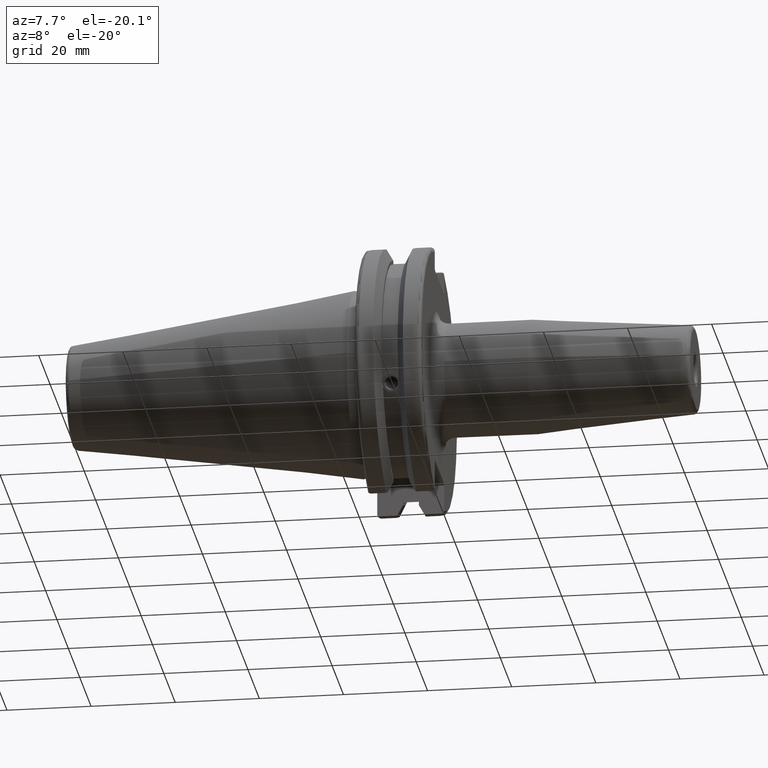
[diagram: clean part render]
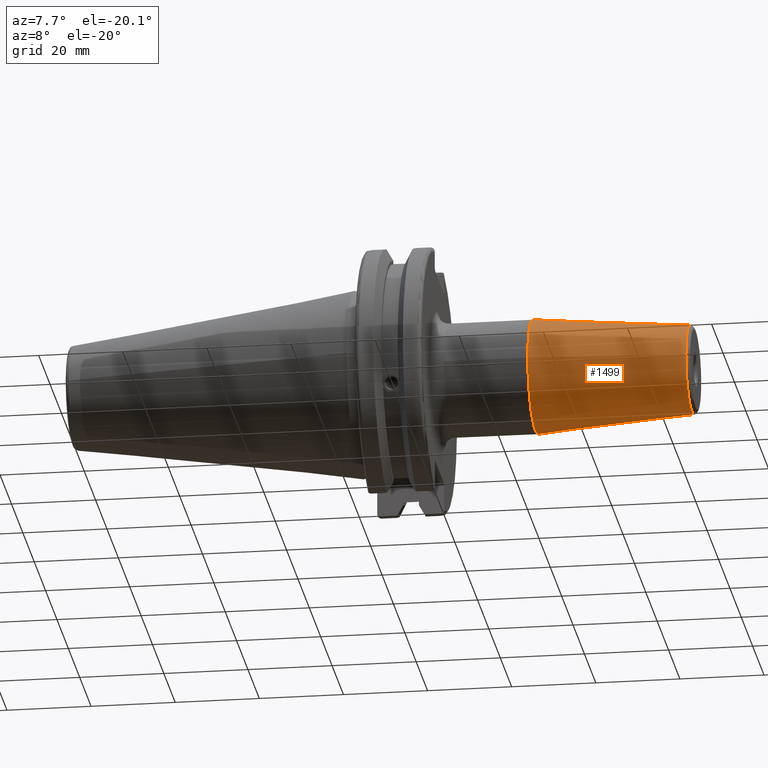
[diagram: same view with one face highlighted and labeled with its STEP entity id]
A machine part, auxiliary view. The second image highlights one B-rep face of the part: STEP entity #1499.
In plain terms, the highlighted conical surface has half-angle 4.5 deg.
Its self-contained STEP definition (entity closure, byte-faithful):
#79=CONICAL_SURFACE('',#1619,12.,0.0785398163397448);
#93=LINE('',#2272,#187);
#187=VECTOR('',#1819,12.);
#366=FACE_OUTER_BOUND('',#455,.T.);
#455=EDGE_LOOP('',(#1035,#1036,#1037,#1038,#1039));
#561=CIRCLE('',#1617,10.5725268420749);
#562=CIRCLE('',#1618,10.5725268420749);
#563=CIRCLE('',#1620,13.5);
#635=VERTEX_POINT('',#2265);
#636=VERTEX_POINT('',#2267);
#637=VERTEX_POINT('',#2271);
#792=EDGE_CURVE('',#635,#636,#561,.T.);
#793=EDGE_CURVE('',#636,#635,#562,.T.);
#794=EDGE_CURVE('',#636,#637,#93,.T.);
#795=EDGE_CURVE('',#637,#637,#563,.T.);
#1035=ORIENTED_EDGE('',*,*,#793,.F.);
#1036=ORIENTED_EDGE('',*,*,#794,.T.);
#1037=ORIENTED_EDGE('',*,*,#795,.T.);
#1038=ORIENTED_EDGE('',*,*,#794,.F.);
#1039=ORIENTED_EDGE('',*,*,#792,.F.);
#1499=ADVANCED_FACE('',(#366),#79,.T.);
#1617=AXIS2_PLACEMENT_3D('',#2268,#1813,#1814);
#1618=AXIS2_PLACEMENT_3D('',#2269,#1815,#1816);
#1619=AXIS2_PLACEMENT_3D('',#2270,#1817,#1818);
#1620=AXIS2_PLACEMENT_3D('',#2273,#1820,#1821);
#1813=DIRECTION('center_axis',(1.,0.,0.));
#1814=DIRECTION('ref_axis',(0.,-1.,3.06161699786838E-17));
#1815=DIRECTION('center_axis',(1.,0.,0.));
#1816=DIRECTION('ref_axis',(0.,-1.,3.06161699786838E-17));
#1817=DIRECTION('center_axis',(-1.,0.,0.));
#1818=DIRECTION('ref_axis',(0.,1.,0.));
#1819=DIRECTION('',(-0.996917333733128,-0.0784590957278449,-9.60846804471011E-18));
#1820=DIRECTION('center_axis',(1.,0.,0.));
#1821=DIRECTION('ref_axis',(0.,0.,-1.));
#2265=CARTESIAN_POINT('',(79.0784590957279,-1.29476111560465E-15,10.5725268420749));
#2267=CARTESIAN_POINT('',(79.0784590957279,-10.5725268420749,-1.29476111560465E-15));
#2268=CARTESIAN_POINT('Origin',(79.0784590957279,0.,-1.61845139450582E-15));
#2269=CARTESIAN_POINT('Origin',(79.0784590957279,0.,-1.61845139450582E-15));
#2270=CARTESIAN_POINT('Origin',(60.9406928957379,0.,0.));
#2271=CARTESIAN_POINT('',(41.8813857914759,-13.5,-1.65327317884893E-15));
#2272=CARTESIAN_POINT('',(60.9406928957379,-12.,-1.46957615897682E-15));
#2273=CARTESIAN_POINT('Origin',(41.8813857914759,0.,0.));